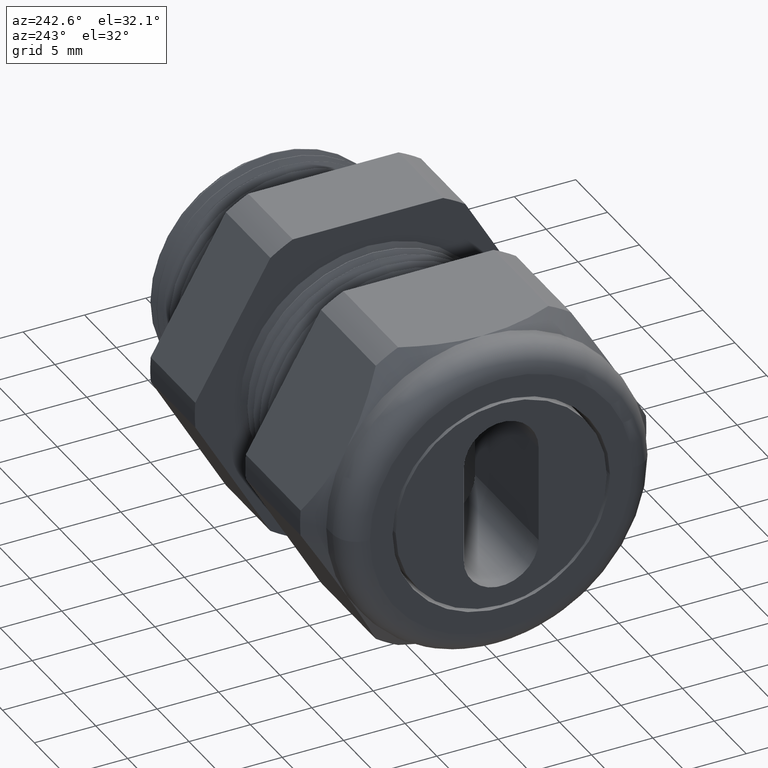
[diagram: clean part render]
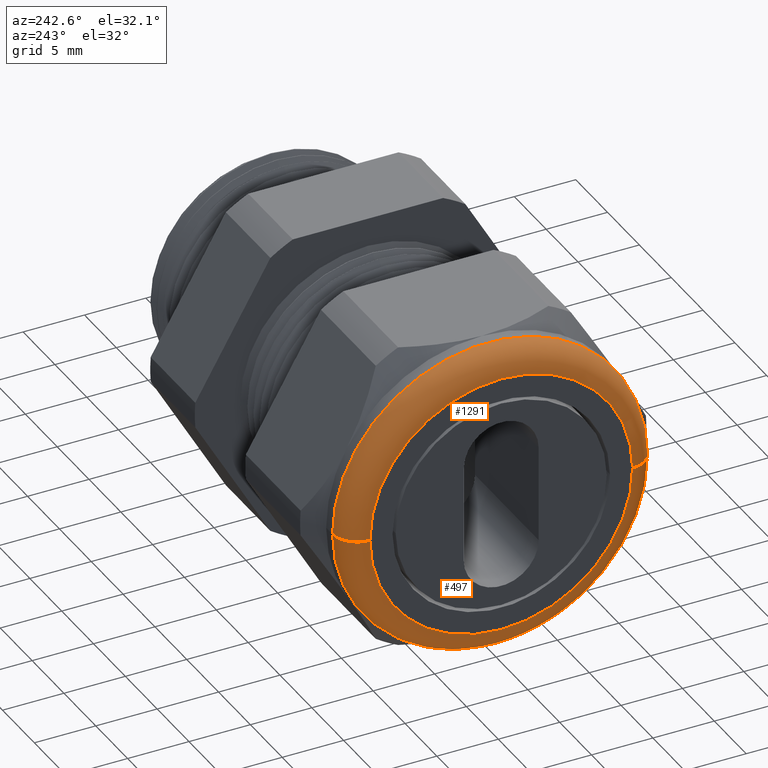
[diagram: same view with one multi-face feature highlighted, each face labeled with its STEP entity id]
A machine part, auxiliary view. The highlighted faces form ONE feature: a constant-radius fillet chain: 2 tangent blend faces with common blend radius 2 mm. The faces share edges in the B-rep.
Their STEP definitions:
[1] entity #497 (Torus):
#86 = EDGE_CURVE ( 'NONE', #1299, #1318, #1476, .T. ) ;
#97 = EDGE_CURVE ( 'NONE', #1296, #1295, #1523, .T. ) ;
#497 = ADVANCED_FACE ( 'NONE', ( #2111 ), #2108, .T. ) ;
#498 = EDGE_LOOP ( 'NONE', ( #499, #500, #501, #561 ) ) ;
#499 = ORIENTED_EDGE ( 'NONE', *, *, #1298, .F. ) ;
#500 = ORIENTED_EDGE ( 'NONE', *, *, #97, .F. ) ;
#501 = ORIENTED_EDGE ( 'NONE', *, *, #1320, .T. ) ;
#561 = ORIENTED_EDGE ( 'NONE', *, *, #86, .F. ) ;
#1295 = VERTEX_POINT ( 'NONE', #3574 ) ;
#1296 = VERTEX_POINT ( 'NONE', #3573 ) ;
#1298 = EDGE_CURVE ( 'NONE', #1295, #1299, #3572, .T. ) ;
#1299 = VERTEX_POINT ( 'NONE', #3567 ) ;
#1318 = VERTEX_POINT ( 'NONE', #3599 ) ;
#1320 = EDGE_CURVE ( 'NONE', #1296, #1318, #3597, .T. ) ;
#1472 = DIRECTION ( 'NONE',  ( 0.0000000000000000000, -1.000000000000000000, 0.0000000000000000000 ) ) ;
#1473 = DIRECTION ( 'NONE',  ( -1.000000000000000000, 3.749030204222210100E-017, 0.0000000000000000000 ) ) ;
#1474 = CARTESIAN_POINT ( 'NONE',  ( -1.409999999999999900, -1.174044498190836100E-016, 0.0000000000000000000 ) ) ;
#1475 = AXIS2_PLACEMENT_3D ( 'NONE', #1474, #1473, #1472 ) ;
#1476 = CIRCLE ( 'NONE', #1475, 0.4212598425196850100 ) ;
#1515 = DIRECTION ( 'NONE',  ( 0.0000000000000000000, -1.000000000000000000, 0.0000000000000000000 ) ) ;
#1516 = DIRECTION ( 'NONE',  ( 1.000000000000000000, -3.749030204222210100E-017, 0.0000000000000000000 ) ) ;
#1517 = CARTESIAN_POINT ( 'NONE',  ( -1.331259842519684900, -1.203564421058727600E-016, 0.0000000000000000000 ) ) ;
#1518 = AXIS2_PLACEMENT_3D ( 'NONE', #1517, #1516, #1515 ) ;
#1523 = CIRCLE ( 'NONE', #1518, 0.5000000000000000000 ) ;
#2105 = DIRECTION ( 'NONE',  ( -3.749030204222210100E-017, -1.000000000000000000, 0.0000000000000000000 ) ) ;
#2106 = DIRECTION ( 'NONE',  ( -1.000000000000000000, 3.749030204222210100E-017, 0.0000000000000000000 ) ) ;
#2107 = AXIS2_PLACEMENT_3D ( 'NONE', #2110, #2106, #2105 ) ;
#2108 = TOROIDAL_SURFACE ( 'NONE', #2107, 0.4212598425196850100, 0.07874015748031496000 ) ;
#2110 = CARTESIAN_POINT ( 'NONE',  ( -1.331259842519684900, -1.203564421058727600E-016, 0.0000000000000000000 ) ) ;
#2111 = FACE_OUTER_BOUND ( 'NONE', #498, .T. ) ;
#3567 = CARTESIAN_POINT ( 'NONE',  ( -1.409999999999999900, 0.4212598425196849000, 5.641089586623634000E-017 ) ) ;
#3568 = DIRECTION ( 'NONE',  ( 0.0000000000000000000, -1.000000000000000000, -1.224646799147353500E-016 ) ) ;
#3569 = DIRECTION ( 'NONE',  ( -4.591237839507477700E-033, -1.224646799147353200E-016, 1.000000000000000000 ) ) ;
#3570 = CARTESIAN_POINT ( 'NONE',  ( -1.331259842519684900, 0.4212598425196849000, 5.158945177510503700E-017 ) ) ;
#3571 = AXIS2_PLACEMENT_3D ( 'NONE', #3570, #3569, #3568 ) ;
#3572 = CIRCLE ( 'NONE', #3571, 0.07874015748031496000 ) ;
#3573 = CARTESIAN_POINT ( 'NONE',  ( -1.331259842519684900, -0.5000000000000001100, 6.123233995736766000E-017 ) ) ;
#3574 = CARTESIAN_POINT ( 'NONE',  ( -1.331259842519684900, 0.4999999999999998300, 0.0000000000000000000 ) ) ;
#3593 = DIRECTION ( 'NONE',  ( -1.000000000000000000, 0.0000000000000000000, 0.0000000000000000000 ) ) ;
#3594 = DIRECTION ( 'NONE',  ( 0.0000000000000000000, 0.0000000000000000000, -1.000000000000000000 ) ) ;
#3595 = CARTESIAN_POINT ( 'NONE',  ( -1.331259842519684900, -0.4212598425196851800, 0.0000000000000000000 ) ) ;
#3596 = AXIS2_PLACEMENT_3D ( 'NONE', #3595, #3594, #3593 ) ;
#3597 = CIRCLE ( 'NONE', #3596, 0.07874015748031502900 ) ;
#3599 = CARTESIAN_POINT ( 'NONE',  ( -1.409999999999999900, -0.4212598425196851800, 0.0000000000000000000 ) ) ;
[2] entity #1291 (Torus):
#1291 = ADVANCED_FACE ( 'NONE', ( #3585 ), #3584, .T. ) ;
#1292 = EDGE_LOOP ( 'NONE', ( #1293, #1297, #1316, #1319 ) ) ;
#1293 = ORIENTED_EDGE ( 'NONE', *, *, #1294, .F. ) ;
#1294 = EDGE_CURVE ( 'NONE', #1295, #1296, #3578, .T. ) ;
#1295 = VERTEX_POINT ( 'NONE', #3574 ) ;
#1296 = VERTEX_POINT ( 'NONE', #3573 ) ;
#1297 = ORIENTED_EDGE ( 'NONE', *, *, #1298, .T. ) ;
#1298 = EDGE_CURVE ( 'NONE', #1295, #1299, #3572, .T. ) ;
#1299 = VERTEX_POINT ( 'NONE', #3567 ) ;
#1316 = ORIENTED_EDGE ( 'NONE', *, *, #1317, .F. ) ;
#1317 = EDGE_CURVE ( 'NONE', #1318, #1299, #3604, .T. ) ;
#1318 = VERTEX_POINT ( 'NONE', #3599 ) ;
#1319 = ORIENTED_EDGE ( 'NONE', *, *, #1320, .F. ) ;
#1320 = EDGE_CURVE ( 'NONE', #1296, #1318, #3597, .T. ) ;
#3567 = CARTESIAN_POINT ( 'NONE',  ( -1.409999999999999900, 0.4212598425196849000, 5.641089586623634000E-017 ) ) ;
#3568 = DIRECTION ( 'NONE',  ( 0.0000000000000000000, -1.000000000000000000, -1.224646799147353500E-016 ) ) ;
#3569 = DIRECTION ( 'NONE',  ( -4.591237839507477700E-033, -1.224646799147353200E-016, 1.000000000000000000 ) ) ;
#3570 = CARTESIAN_POINT ( 'NONE',  ( -1.331259842519684900, 0.4212598425196849000, 5.158945177510503700E-017 ) ) ;
#3571 = AXIS2_PLACEMENT_3D ( 'NONE', #3570, #3569, #3568 ) ;
#3572 = CIRCLE ( 'NONE', #3571, 0.07874015748031496000 ) ;
#3573 = CARTESIAN_POINT ( 'NONE',  ( -1.331259842519684900, -0.5000000000000001100, 6.123233995736766000E-017 ) ) ;
#3574 = CARTESIAN_POINT ( 'NONE',  ( -1.331259842519684900, 0.4999999999999998300, 0.0000000000000000000 ) ) ;
#3575 = DIRECTION ( 'NONE',  ( 0.0000000000000000000, -1.000000000000000000, 0.0000000000000000000 ) ) ;
#3576 = DIRECTION ( 'NONE',  ( 1.000000000000000000, -3.749030204222210100E-017, 0.0000000000000000000 ) ) ;
#3577 = AXIS2_PLACEMENT_3D ( 'NONE', #3583, #3576, #3575 ) ;
#3578 = CIRCLE ( 'NONE', #3577, 0.5000000000000000000 ) ;
#3579 = DIRECTION ( 'NONE',  ( -3.749030204222210100E-017, -1.000000000000000000, 0.0000000000000000000 ) ) ;
#3580 = DIRECTION ( 'NONE',  ( -1.000000000000000000, 3.749030204222210100E-017, 0.0000000000000000000 ) ) ;
#3581 = CARTESIAN_POINT ( 'NONE',  ( -1.331259842519684900, -1.203564421058727600E-016, 0.0000000000000000000 ) ) ;
#3582 = AXIS2_PLACEMENT_3D ( 'NONE', #3581, #3580, #3579 ) ;
#3583 = CARTESIAN_POINT ( 'NONE',  ( -1.331259842519684900, -1.203564421058727600E-016, 0.0000000000000000000 ) ) ;
#3584 = TOROIDAL_SURFACE ( 'NONE', #3582, 0.4212598425196850100, 0.07874015748031496000 ) ;
#3585 = FACE_OUTER_BOUND ( 'NONE', #1292, .T. ) ;
#3593 = DIRECTION ( 'NONE',  ( -1.000000000000000000, 0.0000000000000000000, 0.0000000000000000000 ) ) ;
#3594 = DIRECTION ( 'NONE',  ( 0.0000000000000000000, 0.0000000000000000000, -1.000000000000000000 ) ) ;
#3595 = CARTESIAN_POINT ( 'NONE',  ( -1.331259842519684900, -0.4212598425196851800, 0.0000000000000000000 ) ) ;
#3596 = AXIS2_PLACEMENT_3D ( 'NONE', #3595, #3594, #3593 ) ;
#3597 = CIRCLE ( 'NONE', #3596, 0.07874015748031502900 ) ;
#3599 = CARTESIAN_POINT ( 'NONE',  ( -1.409999999999999900, -0.4212598425196851800, 0.0000000000000000000 ) ) ;
#3600 = DIRECTION ( 'NONE',  ( 0.0000000000000000000, -1.000000000000000000, 0.0000000000000000000 ) ) ;
#3601 = DIRECTION ( 'NONE',  ( -1.000000000000000000, 3.749030204222210100E-017, 0.0000000000000000000 ) ) ;
#3602 = CARTESIAN_POINT ( 'NONE',  ( -1.409999999999999900, -1.174044498190836100E-016, 0.0000000000000000000 ) ) ;
#3603 = AXIS2_PLACEMENT_3D ( 'NONE', #3602, #3601, #3600 ) ;
#3604 = CIRCLE ( 'NONE', #3603, 0.4212598425196850100 ) ;